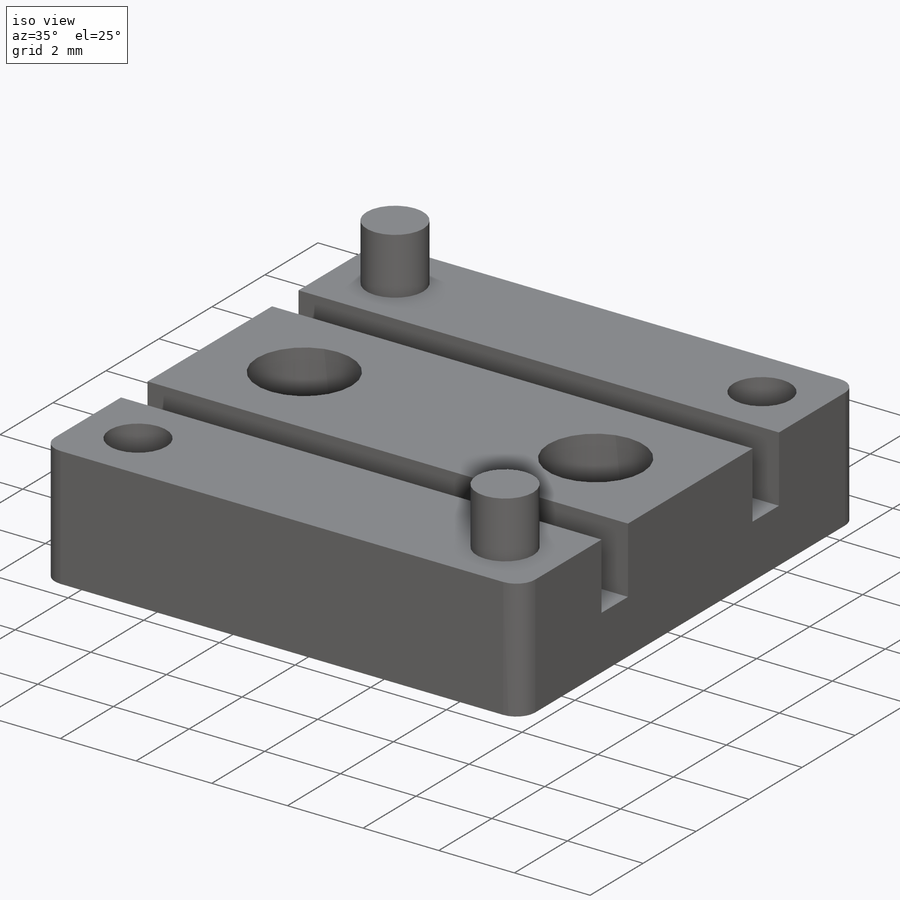
[diagram: iso view]
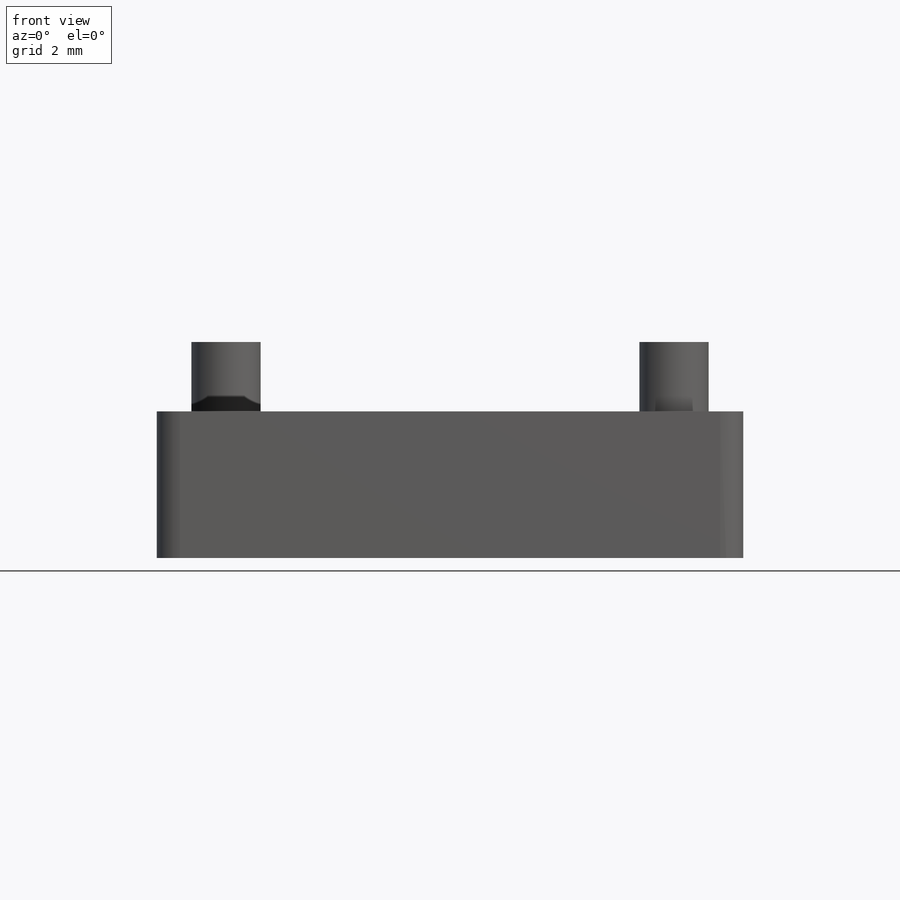
[diagram: front view]
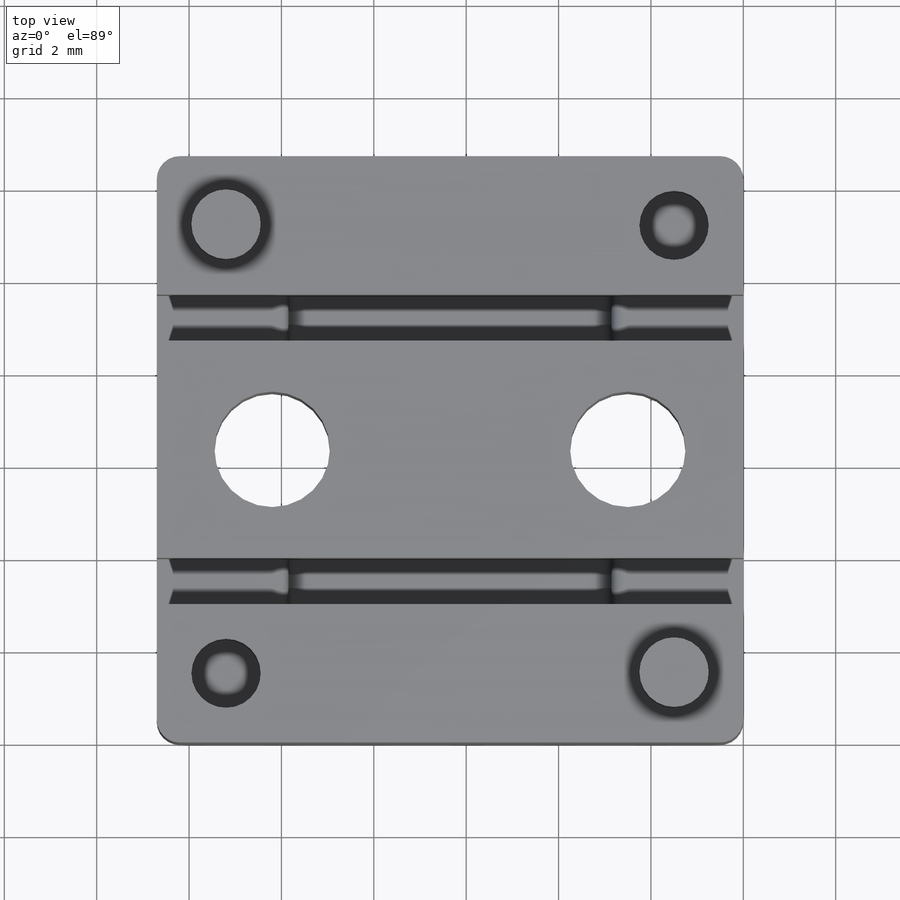
[diagram: top view]
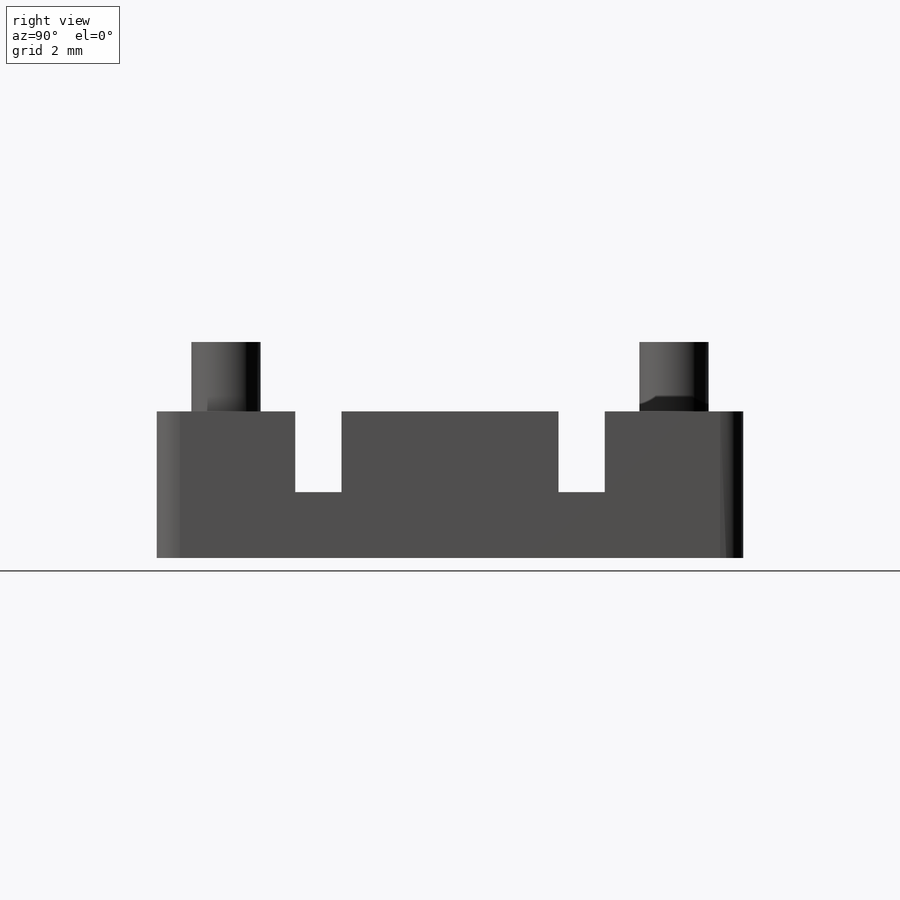
[diagram: right view]
SOLIDWORKS PART (.sldprt)
format: sldprt  version: not decoded by parser v0  size: 281,088 bytes
history: native  units: mm
features: sketch x5, cut_extrude x3, plane x3, mirror x3, extrude x2, fillet x2, material x1 (+11 scaffold rows collapsed)
feature tree (30):
  scaffold x11  (default folders/planes/origin — collapsed)
  material  "Nylon 101"
  sketch  "Sketch1"  dims[c1.D3=2.5mm c1.D4=2.5mm c1.D5=2.5mm c1.D1=12.7mm c1.D2=12.7mm c2.D4=2.5mm c2.D5=2.5mm]
  extrude  "Boss-Extrude1"  Depth=3.175mm
  sketch  "Sketch2"  dims[c1.D1=1.5mm c1.D2=1.5mm c1.D3=1.5mm c2.D2=1.5mm c2.D3=1.5mm]
  extrude  "Boss-Extrude2"  Depth=1.5mm
  sketch  "Sketch3"  dims[c1.D1=1.5mm c1.D2=1.5mm c1.D3=1.5mm c2.D2=1.5mm c2.D3=1.5mm]
  cut_extrude  "Cut-Extrude1"  Depth=1.5mm
  plane  "Plane2"
  plane  "Plane3"
  plane  "Plane4"
  mirror  "Mirror1"
  mirror  "Mirror2"
  sketch  "Sketch4"  dims[D1=1.0mm D2=3.0mm]
  cut_extrude  "Cut-Extrude2"  Depth=1.75mm
  sketch  "Sketch5"  dims[D1=7.0mm D2=2.85mm]
  cut_extrude  "Cut-Extrude3"  Depth=0.75mm
  fillet  "Fillet1"  Radius=0.25mm
  fillet  "Fillet2"  Radius=0.5mm
  mirror  "Mirror3"
decode coverage: 12 of 15 modeling features carry decoded parameters
note: suppression state not decoded; provenance and decode notes live in map.json
